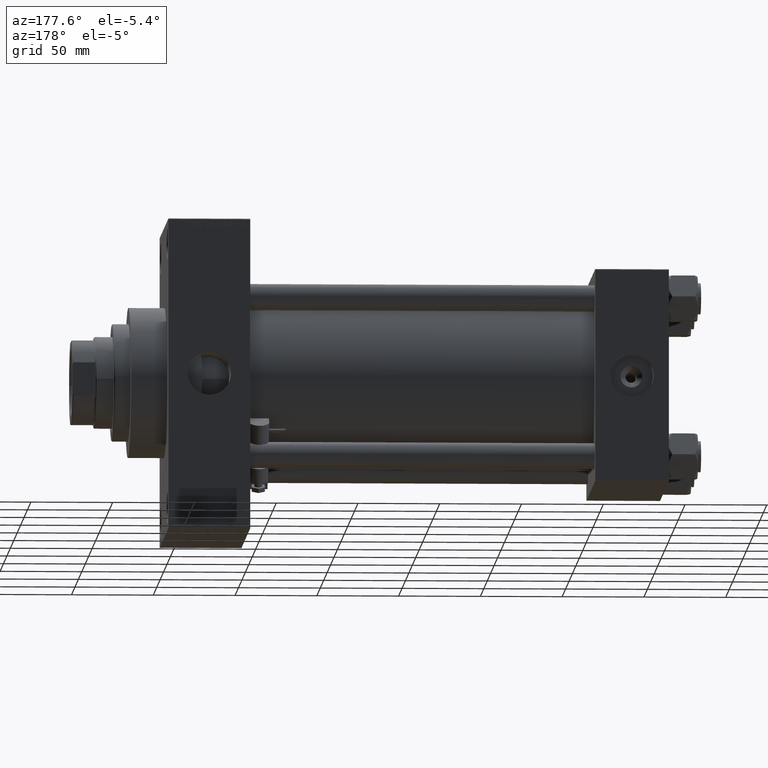
[diagram: clean part render]
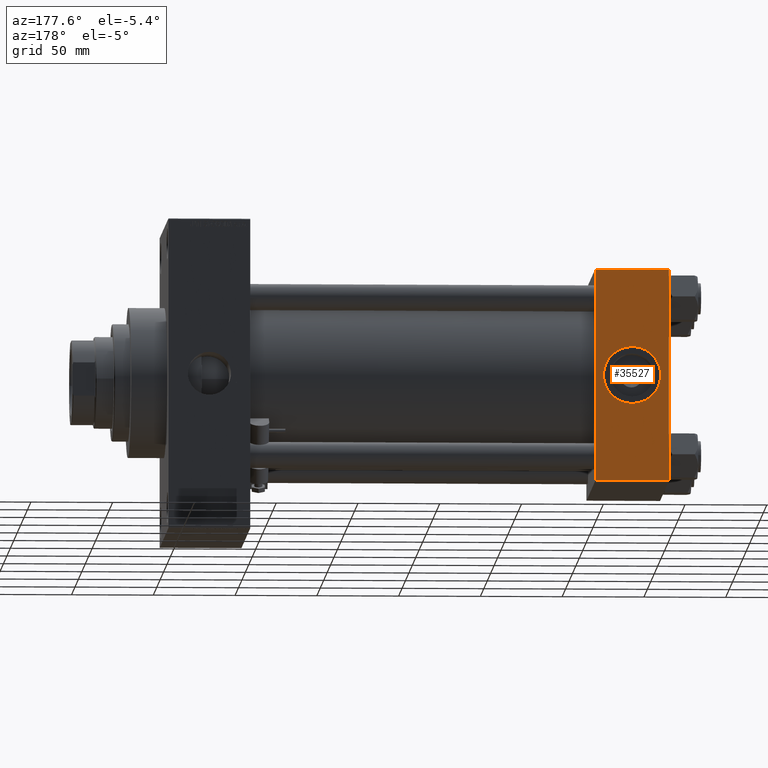
[diagram: same view with one face highlighted and labeled with its STEP entity id]
A machine part, auxiliary view. The second image highlights one B-rep face of the part: STEP entity #35527.
In plain terms, the highlighted planar face has unit normal (0, 1, 0).
Its self-contained STEP definition (entity closure, byte-faithful):
#110 = CARTESIAN_POINT ( 'NONE',  ( 45.00000000000000000, 65.00000000000000000, 65.00000000000001421 ) ) ;
#2006 = EDGE_CURVE ( 'NONE', #46653, #12898, #28375, .T. ) ;
#2253 = CARTESIAN_POINT ( 'NONE',  ( 22.50000000000000000, 65.00000000000000000, 0.000000000000000000 ) ) ;
#3740 = DIRECTION ( 'NONE',  ( 0.000000000000000000, 1.000000000000000000, 0.000000000000000000 ) ) ;
#4538 = EDGE_LOOP ( 'NONE', ( #31515, #30066, #11619, #48553 ) ) ;
#5179 = PLANE ( 'NONE',  #13800 ) ;
#5408 = DIRECTION ( 'NONE',  ( 0.000000000000000000, 0.000000000000000000, -1.000000000000000000 ) ) ;
#6554 = CARTESIAN_POINT ( 'NONE',  ( 0.000000000000000000, 65.00000000000000000, -64.49999999999995737 ) ) ;
#7349 = ORIENTED_EDGE ( 'NONE', *, *, #33448, .F. ) ;
#8033 = VERTEX_POINT ( 'NONE', #40244 ) ;
#8578 = EDGE_CURVE ( 'NONE', #46653, #8033, #24044, .T. ) ;
#11493 = CARTESIAN_POINT ( 'NONE',  ( 22.50000000000000355, 65.00000000000000000, -17.50000000000000000 ) ) ;
#11619 = ORIENTED_EDGE ( 'NONE', *, *, #2006, .F. ) ;
#12898 = VERTEX_POINT ( 'NONE', #6554 ) ;
#13800 = AXIS2_PLACEMENT_3D ( 'NONE', #46880, #20490, #43186 ) ;
#16822 = DIRECTION ( 'NONE',  ( 0.000000000000000000, 0.000000000000000000, 1.000000000000000000 ) ) ;
#17528 = ORIENTED_EDGE ( 'NONE', *, *, #26902, .F. ) ;
#18063 = VECTOR ( 'NONE', #33210, 1000.000000000000000 ) ;
#18687 = EDGE_CURVE ( 'NONE', #8033, #35628, #22326, .T. ) ;
#19007 = CARTESIAN_POINT ( 'NONE',  ( 45.00000000000000000, 65.00000000000000000, -64.49999999999995737 ) ) ;
#19610 = DIRECTION ( 'NONE',  ( 1.000000000000000000, 0.000000000000000000, 0.000000000000000000 ) ) ;
#19856 = CARTESIAN_POINT ( 'NONE',  ( 45.00000000000000000, 65.00000000000000000, 64.49999999999998579 ) ) ;
#20225 = CARTESIAN_POINT ( 'NONE',  ( 0.000000000000000000, 65.00000000000000000, 65.00000000000001421 ) ) ;
#20490 = DIRECTION ( 'NONE',  ( -0.000000000000000000, 1.000000000000000000, 0.000000000000000000 ) ) ;
#22223 = LINE ( 'NONE', #19007, #47979 ) ;
#22326 = LINE ( 'NONE', #110, #18063 ) ;
#22610 = VERTEX_POINT ( 'NONE', #11493 ) ;
#22708 = DIRECTION ( 'NONE',  ( -1.000000000000000000, 0.000000000000000000, 0.000000000000000000 ) ) ;
#23685 = CARTESIAN_POINT ( 'NONE',  ( 0.000000000000000000, 65.00000000000000000, 64.49999999999998579 ) ) ;
#24044 = LINE ( 'NONE', #19856, #27463 ) ;
#26271 = CARTESIAN_POINT ( 'NONE',  ( 22.50000000000000000, 65.00000000000000000, 17.50000000000000000 ) ) ;
#26902 = EDGE_CURVE ( 'NONE', #33212, #22610, #30855, .T. ) ;
#27463 = VECTOR ( 'NONE', #19610, 1000.000000000000000 ) ;
#28375 = LINE ( 'NONE', #20225, #28781 ) ;
#28781 = VECTOR ( 'NONE', #5408, 1000.000000000000000 ) ;
#30066 = ORIENTED_EDGE ( 'NONE', *, *, #41302, .T. ) ;
#30286 = AXIS2_PLACEMENT_3D ( 'NONE', #41264, #3740, #37822 ) ;
#30855 = CIRCLE ( 'NONE', #36400, 17.50000000000000000 ) ;
#31515 = ORIENTED_EDGE ( 'NONE', *, *, #18687, .T. ) ;
#32387 = DIRECTION ( 'NONE',  ( 0.000000000000000000, 1.000000000000000000, 0.000000000000000000 ) ) ;
#33212 = VERTEX_POINT ( 'NONE', #26271 ) ;
#33210 = DIRECTION ( 'NONE',  ( 0.000000000000000000, 0.000000000000000000, -1.000000000000000000 ) ) ;
#33448 = EDGE_CURVE ( 'NONE', #22610, #33212, #35815, .T. ) ;
#35527 = ADVANCED_FACE ( 'NONE', ( #36298, #43682 ), #5179, .T. ) ;
#35628 = VERTEX_POINT ( 'NONE', #40229 ) ;
#35815 = CIRCLE ( 'NONE', #30286, 17.50000000000000000 ) ;
#36298 = FACE_BOUND ( 'NONE', #43769, .T. ) ;
#36400 = AXIS2_PLACEMENT_3D ( 'NONE', #2253, #32387, #16822 ) ;
#37822 = DIRECTION ( 'NONE',  ( 0.000000000000000000, 0.000000000000000000, 1.000000000000000000 ) ) ;
#40229 = CARTESIAN_POINT ( 'NONE',  ( 45.00000000000000000, 65.00000000000000000, -64.49999999999995737 ) ) ;
#40244 = CARTESIAN_POINT ( 'NONE',  ( 45.00000000000000000, 65.00000000000000000, 64.49999999999998579 ) ) ;
#41264 = CARTESIAN_POINT ( 'NONE',  ( 22.50000000000000000, 65.00000000000000000, 0.000000000000000000 ) ) ;
#41302 = EDGE_CURVE ( 'NONE', #35628, #12898, #22223, .T. ) ;
#43186 = DIRECTION ( 'NONE',  ( 0.000000000000000000, -0.000000000000000000, 1.000000000000000000 ) ) ;
#43682 = FACE_OUTER_BOUND ( 'NONE', #4538, .T. ) ;
#43769 = EDGE_LOOP ( 'NONE', ( #17528, #7349 ) ) ;
#46653 = VERTEX_POINT ( 'NONE', #23685 ) ;
#46880 = CARTESIAN_POINT ( 'NONE',  ( 45.00000000000000000, 65.00000000000000000, 65.00000000000001421 ) ) ;
#47979 = VECTOR ( 'NONE', #22708, 1000.000000000000000 ) ;
#48553 = ORIENTED_EDGE ( 'NONE', *, *, #8578, .T. ) ;